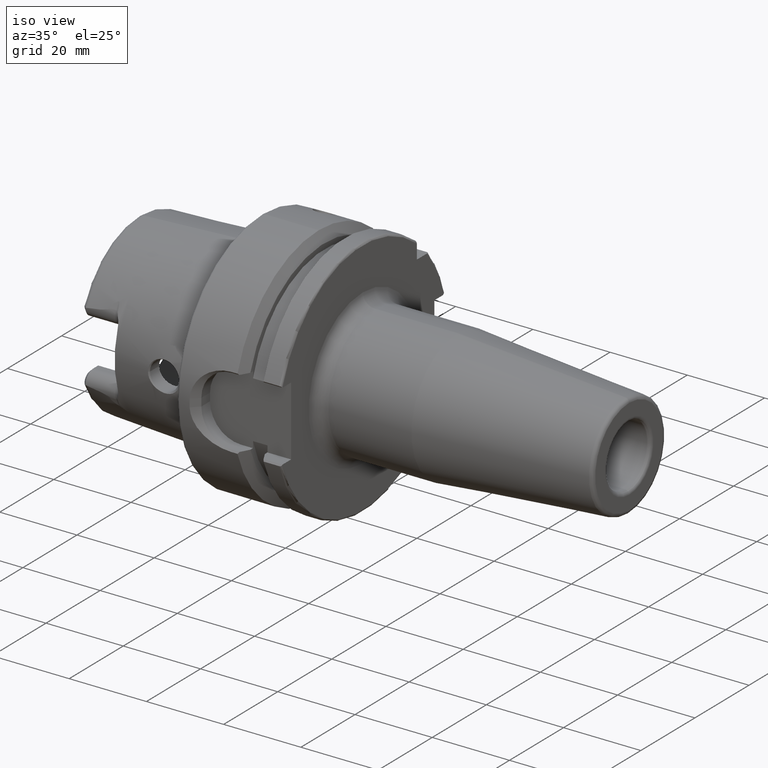
[diagram: clean part render]
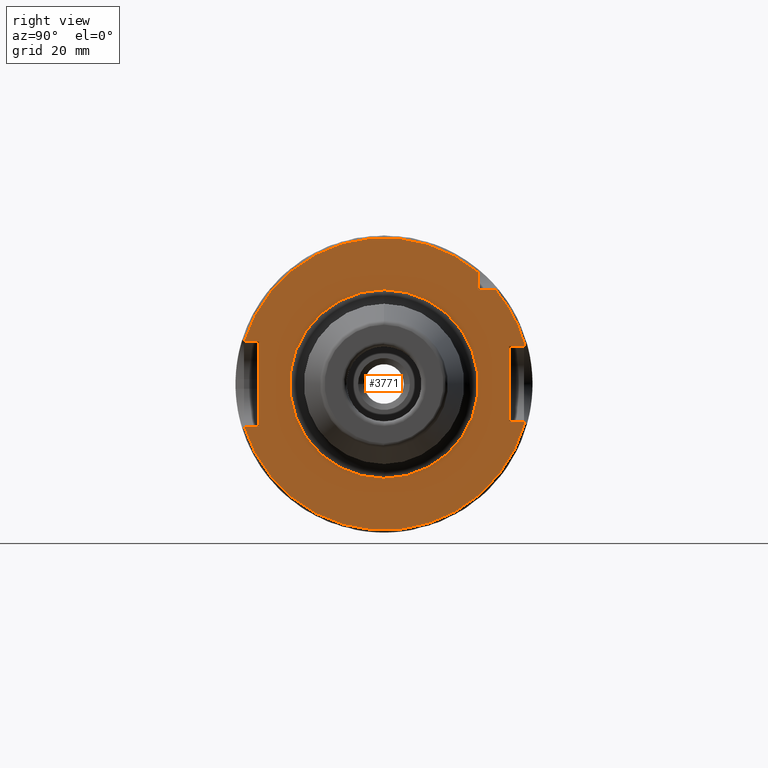
[diagram: tour spotlight — one face highlighted and labeled with its STEP entity id]
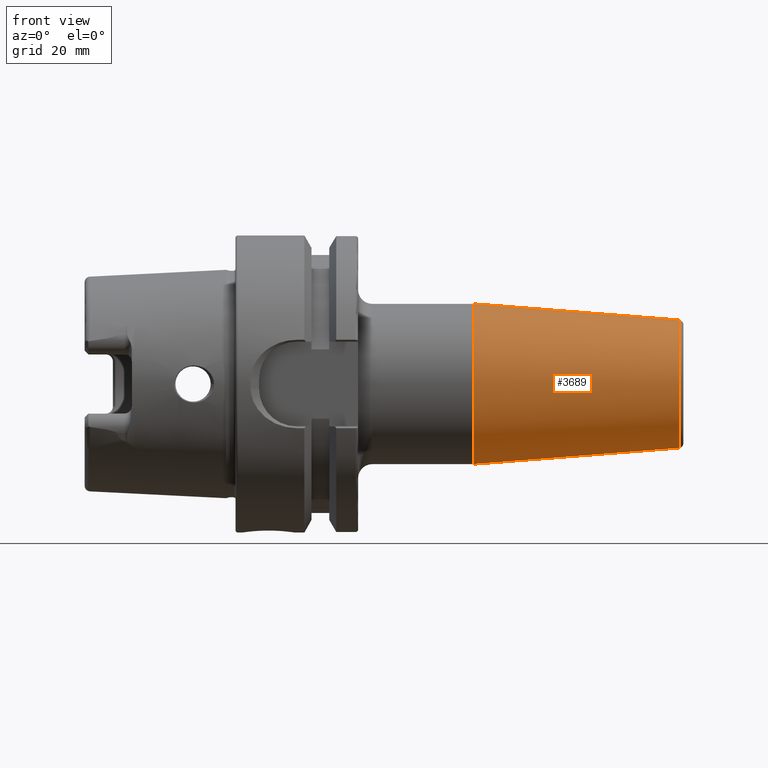
[diagram: tour spotlight — one face highlighted and labeled with its STEP entity id]
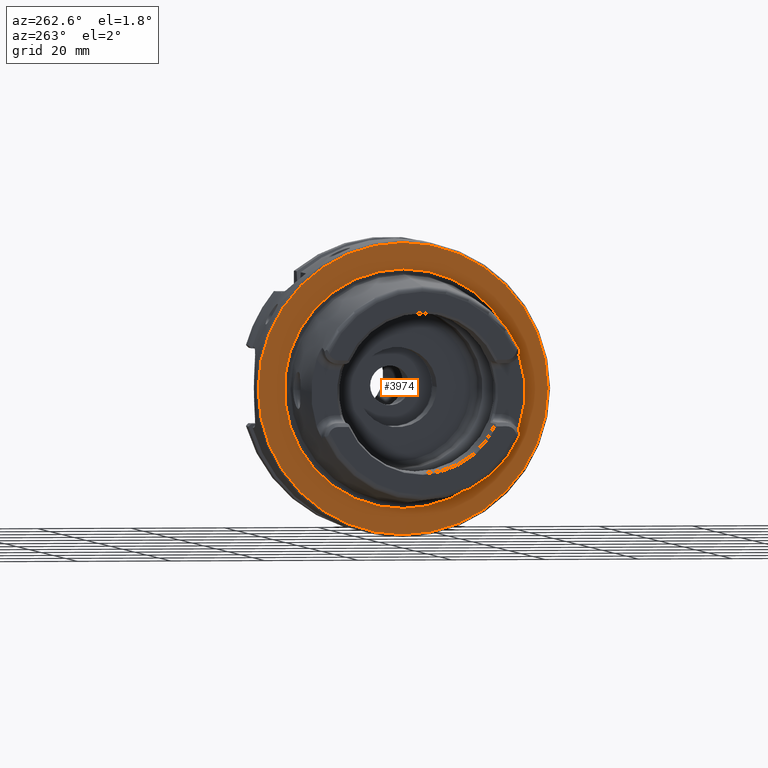
[diagram: tour spotlight — one face highlighted and labeled with its STEP entity id]
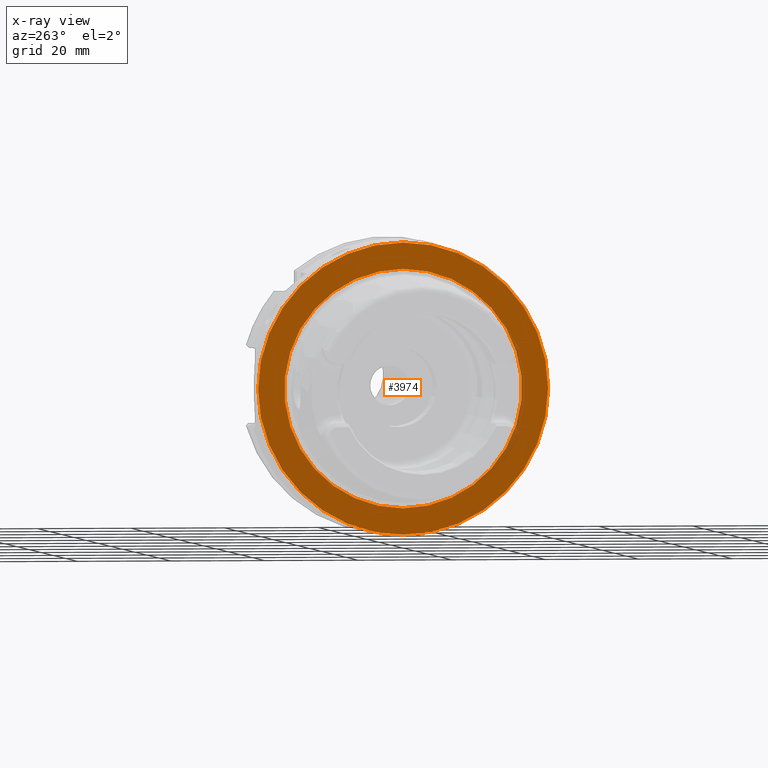
[diagram: x-ray of the same camera — body ghosted, this tour face saturated]
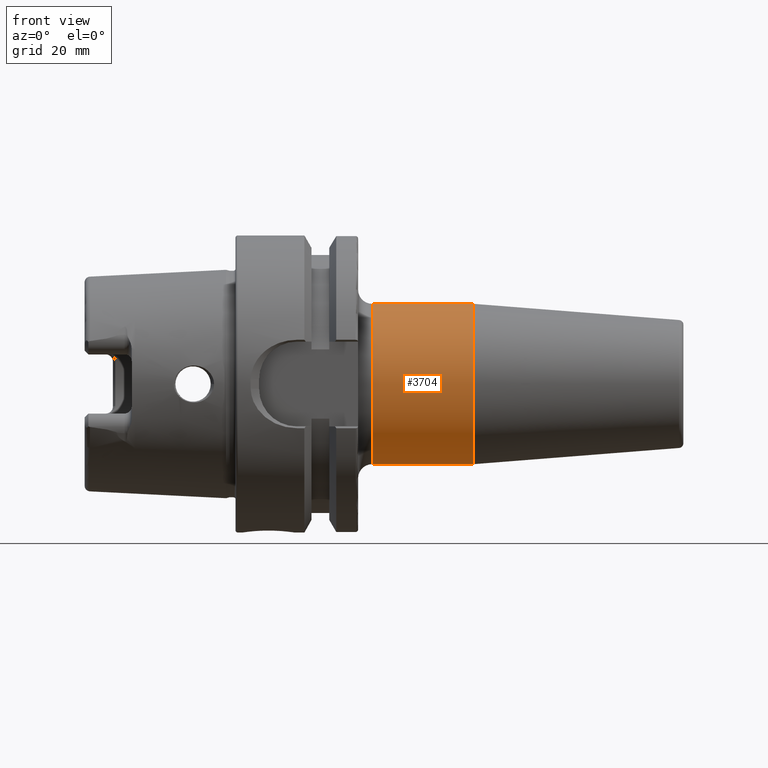
[diagram: tour spotlight — one face highlighted and labeled with its STEP entity id]
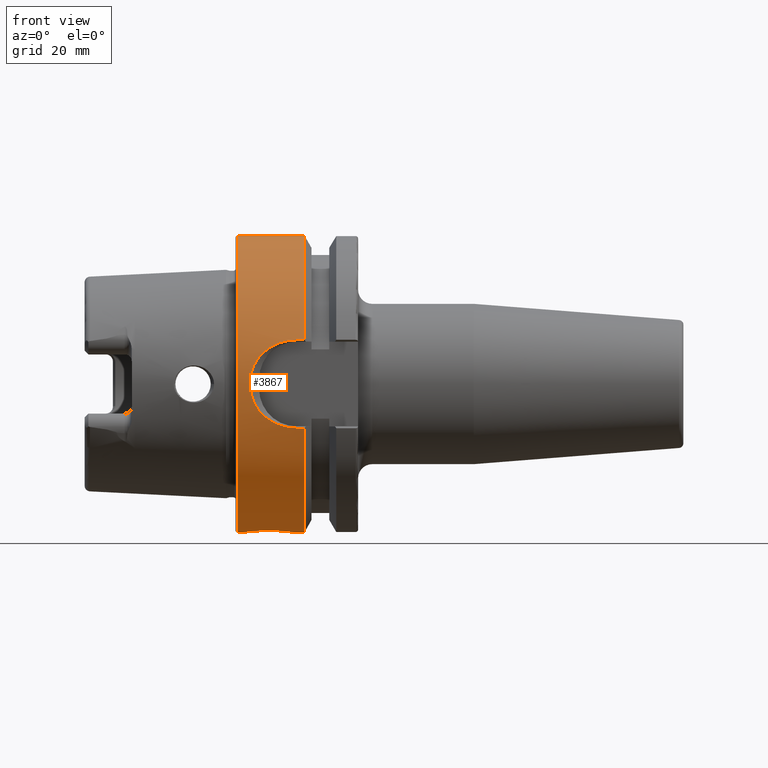
[diagram: tour spotlight — one face highlighted and labeled with its STEP entity id]
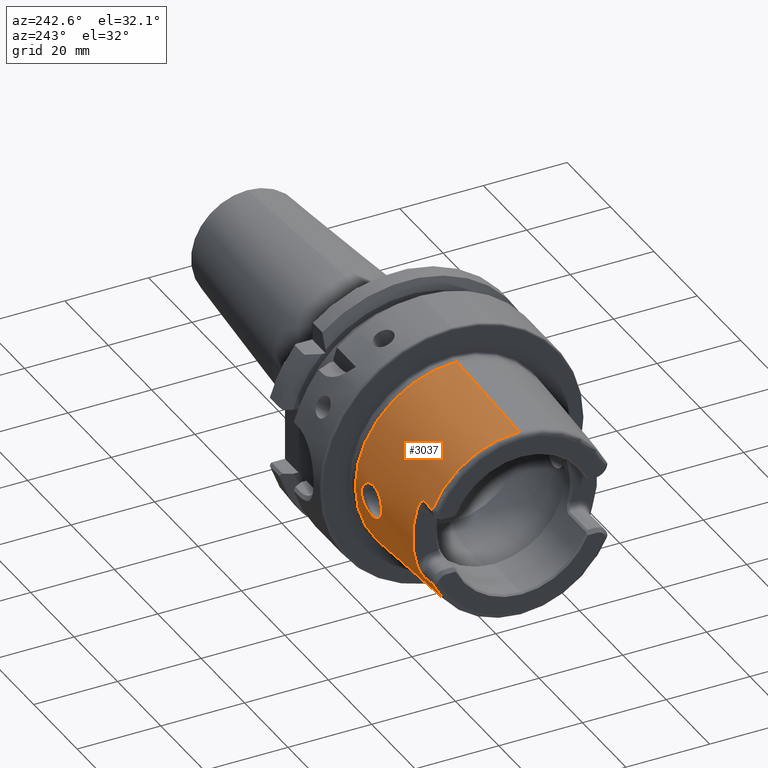
[diagram: tour spotlight — one face highlighted and labeled with its STEP entity id]
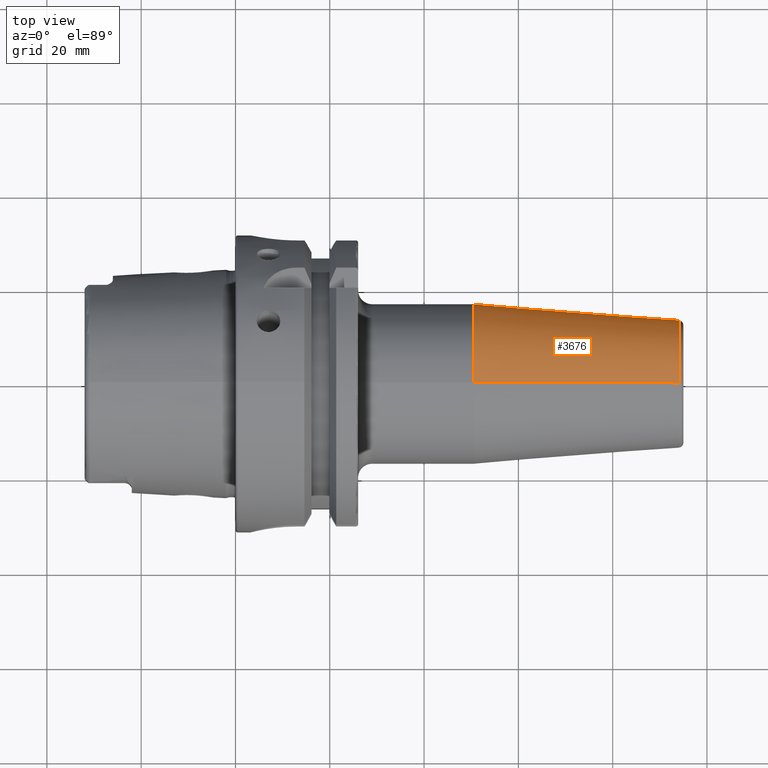
[diagram: tour spotlight — one face highlighted and labeled with its STEP entity id]
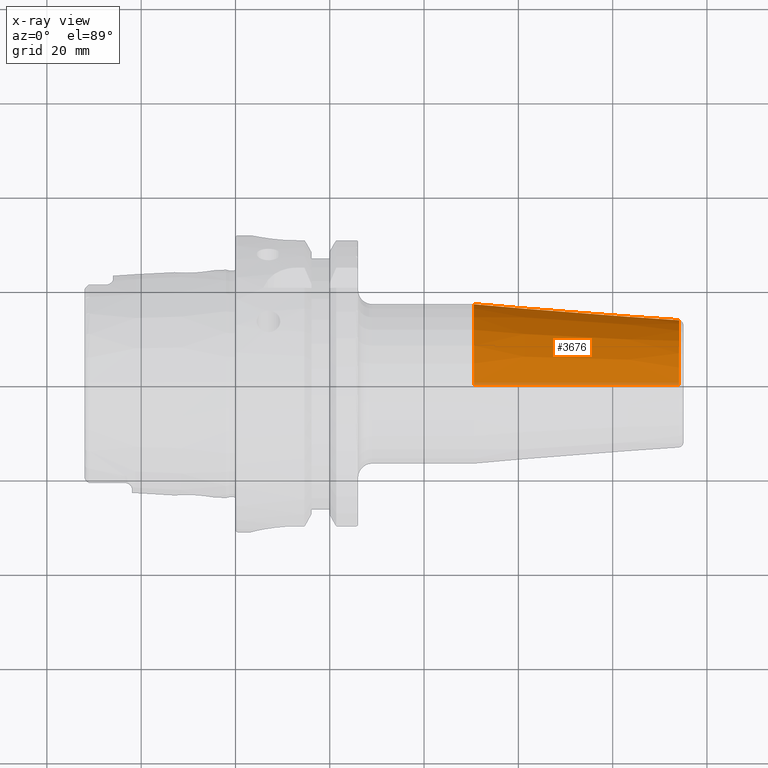
[diagram: x-ray of the same camera — body ghosted, this tour face saturated]
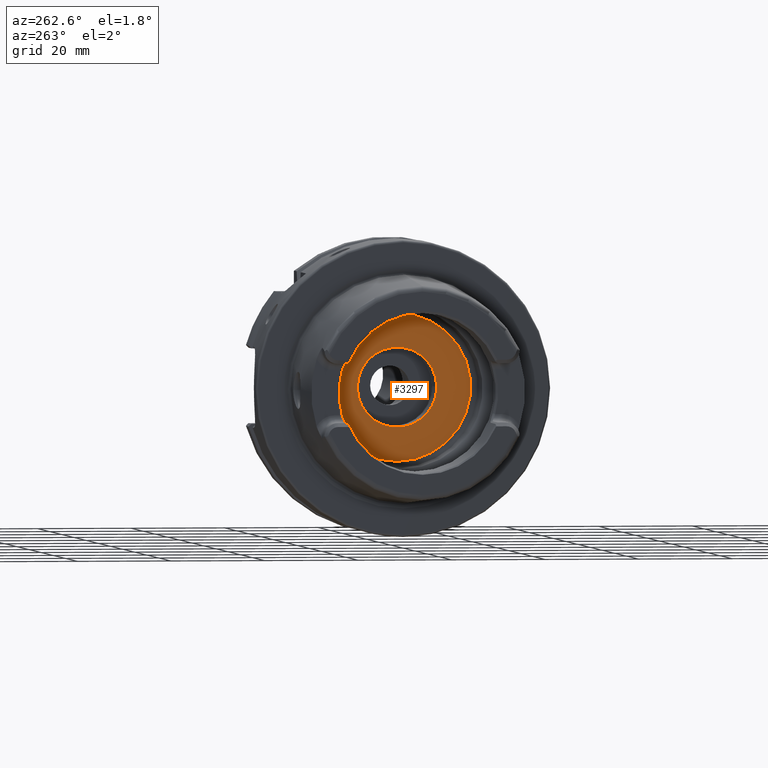
[diagram: tour spotlight — one face highlighted and labeled with its STEP entity id]
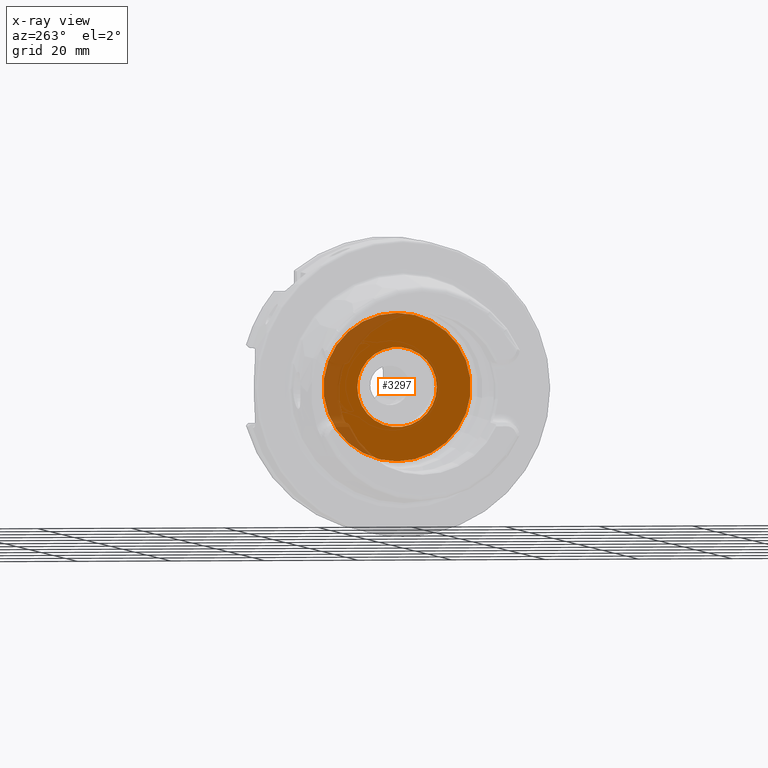
[diagram: x-ray of the same camera — body ghosted, this tour face saturated]
A machine part: a face-by-face anatomy tour. The part has 184 B-rep faces; the first image is the clean iso view, then the 8 largest visible faces are spotlighted one at a time (largest first), each with its STEP entity span.

Face 1 — right view, entity #3771. In plain terms, the highlighted planar face has unit normal (1, 0, 0).
Definition (entity closure, byte-faithful):
#622=DIRECTION('',(0.E0,1.E0,0.E0));
#623=VECTOR('',#622,3.164793948383E0);
#624=CARTESIAN_POINT('',(2.6E1,-2.966479394838E1,-9.E0));
#625=LINE('',#624,#623);
#626=DIRECTION('',(0.E0,0.E0,1.E0));
#627=VECTOR('',#626,1.8E1);
#628=CARTESIAN_POINT('',(2.6E1,-2.65E1,-9.E0));
#629=LINE('',#628,#627);
#630=DIRECTION('',(0.E0,1.E0,0.E0));
#631=VECTOR('',#630,3.164793948383E0);
#632=CARTESIAN_POINT('',(2.6E1,-2.966479394838E1,9.E0));
#633=LINE('',#632,#631);
#634=DIRECTION('',(0.E0,0.E0,-1.E0));
#635=VECTOR('',#634,3.685438564654E0);
#636=CARTESIAN_POINT('',(2.6E1,2.E1,2.368543856465E1));
#637=LINE('',#636,#635);
#638=DIRECTION('',(0.E0,-1.E0,0.E0));
#639=VECTOR('',#638,3.685438564654E0);
#640=CARTESIAN_POINT('',(2.6E1,2.368543856465E1,2.E1));
#641=LINE('',#640,#639);
#642=DIRECTION('',(0.E0,-7.071067811866E-1,-7.071067811865E-1));
#643=VECTOR('',#642,2.782025045905E-1);
#644=CARTESIAN_POINT('',(2.6E1,2.989671887754E1,8.196718877539E0));
#645=LINE('',#644,#643);
#646=DIRECTION('',(0.E0,-1.E0,0.E0));
#647=VECTOR('',#646,3.2E0);
#648=CARTESIAN_POINT('',(2.6E1,2.97E1,8.E0));
#649=LINE('',#648,#647);
#650=DIRECTION('',(0.E0,0.E0,1.E0));
#651=VECTOR('',#650,1.6E1);
#652=CARTESIAN_POINT('',(2.6E1,2.65E1,-8.E0));
#653=LINE('',#652,#651);
#654=DIRECTION('',(0.E0,-1.E0,0.E0));
#655=VECTOR('',#654,3.2E0);
#656=CARTESIAN_POINT('',(2.6E1,2.97E1,-8.E0));
#657=LINE('',#656,#655);
#658=DIRECTION('',(0.E0,-7.071067811865E-1,7.071067811866E-1));
#659=VECTOR('',#658,2.782025045903E-1);
#660=CARTESIAN_POINT('',(2.6E1,2.989671887754E1,-8.196718877539E0));
#661=LINE('',#660,#659);
#662=CARTESIAN_POINT('',(2.6E1,0.E0,0.E0));
#663=DIRECTION('',(1.E0,0.E0,0.E0));
#664=DIRECTION('',(0.E0,0.E0,-1.E0));
#665=AXIS2_PLACEMENT_3D('',#662,#663,#664);
#667=CARTESIAN_POINT('',(2.6E1,0.E0,0.E0));
#668=DIRECTION('',(1.E0,0.E0,0.E0));
#669=DIRECTION('',(0.E0,0.E0,1.E0));
#670=AXIS2_PLACEMENT_3D('',#667,#668,#669);
#677=CARTESIAN_POINT('',(2.6E1,0.E0,0.E0));
#678=DIRECTION('',(1.E0,0.E0,0.E0));
#679=DIRECTION('',(0.E0,-9.569288370446E-1,-2.903225806452E-1));
#680=AXIS2_PLACEMENT_3D('',#677,#678,#679);
#802=CARTESIAN_POINT('',(2.6E1,2.989671887754E1,-8.196718877539E0));
#1980=CARTESIAN_POINT('',(2.6E1,-2.966479394838E1,9.E0));
#2115=CARTESIAN_POINT('',(2.6E1,-2.966479394838E1,-9.E0));
#2308=CARTESIAN_POINT('',(2.6E1,2.989671887754E1,8.196718877539E0));
#2327=CARTESIAN_POINT('',(2.6E1,0.E0,0.E0));
#2328=DIRECTION('',(1.E0,0.E0,0.E0));
#2329=DIRECTION('',(0.E0,9.644102863722E-1,2.644102863722E-1));
#2330=AXIS2_PLACEMENT_3D('',#2327,#2328,#2329);
#2332=CARTESIAN_POINT('',(2.6E1,2.368543856465E1,2.E1));
#2357=CARTESIAN_POINT('',(2.6E1,2.E1,2.368543856465E1));
#2372=CARTESIAN_POINT('',(2.6E1,0.E0,0.E0));
#2373=DIRECTION('',(1.E0,0.E0,0.E0));
#2374=DIRECTION('',(0.E0,6.451612903226E-1,7.640464053114E-1));
#2375=AXIS2_PLACEMENT_3D('',#2372,#2373,#2374);
#2593=CARTESIAN_POINT('',(2.6E1,2.65E1,-8.E0));
#2594=CARTESIAN_POINT('',(2.6E1,2.65E1,8.E0));
#2595=VERTEX_POINT('',#2593);
#2596=VERTEX_POINT('',#2594);
#2625=CARTESIAN_POINT('',(2.6E1,-2.65E1,-9.E0));
#2626=CARTESIAN_POINT('',(2.6E1,-2.65E1,9.E0));
#2627=VERTEX_POINT('',#2625);
#2628=VERTEX_POINT('',#2626);
#2683=CARTESIAN_POINT('',(2.6E1,2.E1,2.E1));
#2684=VERTEX_POINT('',#2683);
#2896=CARTESIAN_POINT('',(2.6E1,2.97E1,-8.E0));
#2897=VERTEX_POINT('',#2896);
#2898=CARTESIAN_POINT('',(2.6E1,2.97E1,8.E0));
#2899=VERTEX_POINT('',#2898);
#2912=VERTEX_POINT('',#2115);
#2913=VERTEX_POINT('',#802);
#2916=VERTEX_POINT('',#2308);
#2917=VERTEX_POINT('',#2332);
#2920=VERTEX_POINT('',#2357);
#2921=VERTEX_POINT('',#1980);
#2984=CARTESIAN_POINT('',(2.6E1,0.E0,-2.E1));
#2985=CARTESIAN_POINT('',(2.6E1,0.E0,2.E1));
#2986=VERTEX_POINT('',#2984);
#2987=VERTEX_POINT('',#2985);
#3733=CARTESIAN_POINT('',(2.6E1,0.E0,0.E0));
#3734=DIRECTION('',(1.E0,0.E0,0.E0));
#3735=DIRECTION('',(0.E0,0.E0,1.E0));
#3736=AXIS2_PLACEMENT_3D('',#3733,#3734,#3735);
#3737=PLANE('',#3736);
#3739=ORIENTED_EDGE('',*,*,#3738,.F.);
#3741=ORIENTED_EDGE('',*,*,#3740,.T.);
#3743=ORIENTED_EDGE('',*,*,#3742,.T.);
#3745=ORIENTED_EDGE('',*,*,#3744,.F.);
#3747=ORIENTED_EDGE('',*,*,#3746,.F.);
#3749=ORIENTED_EDGE('',*,*,#3748,.T.);
#3751=ORIENTED_EDGE('',*,*,#3750,.F.);
#3753=ORIENTED_EDGE('',*,*,#3752,.F.);
#3755=ORIENTED_EDGE('',*,*,#3754,.T.);
#3757=ORIENTED_EDGE('',*,*,#3756,.T.);
#3759=ORIENTED_EDGE('',*,*,#3758,.F.);
#3761=ORIENTED_EDGE('',*,*,#3760,.F.);
#3763=ORIENTED_EDGE('',*,*,#3762,.F.);
#3764=EDGE_LOOP('',(#3739,#3741,#3743,#3745,#3747,#3749,#3751,#3753,#3755,#3757,
#3759,#3761,#3763));
#3765=FACE_OUTER_BOUND('',#3764,.F.);
#3766=ORIENTED_EDGE('',*,*,#3723,.T.);
#3768=ORIENTED_EDGE('',*,*,#3767,.T.);
#3769=EDGE_LOOP('',(#3766,#3768));
#3770=FACE_BOUND('',#3769,.F.);
#3771=ADVANCED_FACE('',(#3765,#3770),#3737,.T.);
#666=CIRCLE('',#665,2.E1);
#671=CIRCLE('',#670,2.E1);
#681=CIRCLE('',#680,3.1E1);
#2331=CIRCLE('',#2330,3.1E1);
#2376=CIRCLE('',#2375,3.1E1);
#3723=EDGE_CURVE('',#2986,#2987,#666,.T.);
#3738=EDGE_CURVE('',#2912,#2913,#681,.T.);
#3740=EDGE_CURVE('',#2912,#2627,#625,.T.);
#3742=EDGE_CURVE('',#2627,#2628,#629,.T.);
#3744=EDGE_CURVE('',#2921,#2628,#633,.T.);
#3746=EDGE_CURVE('',#2920,#2921,#2376,.T.);
#3748=EDGE_CURVE('',#2920,#2684,#637,.T.);
#3750=EDGE_CURVE('',#2917,#2684,#641,.T.);
#3752=EDGE_CURVE('',#2916,#2917,#2331,.T.);
#3754=EDGE_CURVE('',#2916,#2899,#645,.T.);
#3756=EDGE_CURVE('',#2899,#2596,#649,.T.);
#3758=EDGE_CURVE('',#2595,#2596,#653,.T.);
#3760=EDGE_CURVE('',#2897,#2595,#657,.T.);
#3762=EDGE_CURVE('',#2913,#2897,#661,.T.);
#3767=EDGE_CURVE('',#2987,#2986,#671,.T.);

Face 2 — front view, entity #3689. In plain terms, the highlighted conical surface has half-angle 4.5 deg.
Definition (entity closure, byte-faithful):
#586=DIRECTION('',(-9.969173337331E-1,0.E0,-7.845909572785E-2));
#587=VECTOR('',#586,4.368484145948E1);
#588=CARTESIAN_POINT('',(9.407845909573E1,0.E0,-1.357252684207E1));
#589=LINE('',#588,#587);
#590=DIRECTION('',(-9.969173337331E-1,0.E0,7.845909572785E-2));
#591=VECTOR('',#590,4.368484145948E1);
#592=CARTESIAN_POINT('',(9.407845909573E1,0.E0,1.357252684207E1));
#593=LINE('',#592,#591);
#594=CARTESIAN_POINT('',(9.407845909573E1,0.E0,0.E0));
#595=DIRECTION('',(-1.E0,0.E0,0.E0));
#596=DIRECTION('',(0.E0,0.E0,-1.E0));
#597=AXIS2_PLACEMENT_3D('',#594,#595,#596);
#607=CARTESIAN_POINT('',(5.052828342339E1,0.E0,0.E0));
#608=DIRECTION('',(-1.E0,0.E0,0.E0));
#609=DIRECTION('',(0.E0,0.E0,-1.E0));
#610=AXIS2_PLACEMENT_3D('',#607,#608,#609);
#2955=CARTESIAN_POINT('',(9.407845909573E1,0.E0,-1.357252684207E1));
#2957=VERTEX_POINT('',#2955);
#2958=CARTESIAN_POINT('',(5.052828342339E1,0.E0,-1.7E1));
#2959=VERTEX_POINT('',#2958);
#2977=CARTESIAN_POINT('',(9.407845909573E1,0.E0,1.357252684207E1));
#2979=VERTEX_POINT('',#2977);
#2980=CARTESIAN_POINT('',(5.052828342339E1,0.E0,1.7E1));
#2981=VERTEX_POINT('',#2980);
#3677=CARTESIAN_POINT('',(7.230337125956E1,0.E0,0.E0));
#3678=DIRECTION('',(-1.E0,0.E0,0.E0));
#3679=DIRECTION('',(0.E0,0.E0,-1.E0));
#3680=AXIS2_PLACEMENT_3D('',#3677,#3678,#3679);
#3681=CONICAL_SURFACE('',#3680,1.528626342104E1,4.5E0);
#3682=ORIENTED_EDGE('',*,*,#3667,.T.);
#3684=ORIENTED_EDGE('',*,*,#3683,.T.);
#3685=ORIENTED_EDGE('',*,*,#3670,.F.);
#3686=ORIENTED_EDGE('',*,*,#3641,.F.);
#3687=EDGE_LOOP('',(#3682,#3684,#3685,#3686));
#3688=FACE_OUTER_BOUND('',#3687,.F.);
#3689=ADVANCED_FACE('',(#3688),#3681,.T.);
#598=CIRCLE('',#597,1.357252684207E1);
#611=CIRCLE('',#610,1.7E1);
#3641=EDGE_CURVE('',#2957,#2979,#598,.T.);
#3667=EDGE_CURVE('',#2957,#2959,#589,.T.);
#3670=EDGE_CURVE('',#2979,#2981,#593,.T.);
#3683=EDGE_CURVE('',#2959,#2981,#611,.T.);

Face 3 — auxiliary view, entity #3974. An x-ray twin of the same camera follows (body ghosted, this face saturated) — the face is partly hidden behind the body. In plain terms, the highlighted planar face has unit normal (1, 0, 0).
Definition (entity closure, byte-faithful):
#975=CARTESIAN_POINT('',(0.E0,0.E0,0.E0));
#976=DIRECTION('',(1.E0,0.E0,0.E0));
#977=DIRECTION('',(0.E0,0.E0,-1.E0));
#978=AXIS2_PLACEMENT_3D('',#975,#976,#977);
#980=CARTESIAN_POINT('',(0.E0,0.E0,0.E0));
#981=DIRECTION('',(1.E0,0.E0,0.E0));
#982=DIRECTION('',(0.E0,0.E0,1.E0));
#983=AXIS2_PLACEMENT_3D('',#980,#981,#982);
#985=CARTESIAN_POINT('',(0.E0,0.E0,0.E0));
#986=DIRECTION('',(-1.E0,0.E0,0.E0));
#987=DIRECTION('',(0.E0,0.E0,1.E0));
#988=AXIS2_PLACEMENT_3D('',#985,#986,#987);
#990=CARTESIAN_POINT('',(0.E0,0.E0,0.E0));
#991=DIRECTION('',(-1.E0,0.E0,0.E0));
#992=DIRECTION('',(0.E0,0.E0,-1.E0));
#993=AXIS2_PLACEMENT_3D('',#990,#991,#992);
#2573=CARTESIAN_POINT('',(0.E0,0.E0,-2.54204E1));
#2574=CARTESIAN_POINT('',(0.E0,0.E0,2.54204E1));
#2575=VERTEX_POINT('',#2573);
#2576=VERTEX_POINT('',#2574);
#2902=CARTESIAN_POINT('',(0.E0,0.E0,3.1E1));
#2903=CARTESIAN_POINT('',(0.E0,1.138921523207E-14,-3.1E1));
#2904=VERTEX_POINT('',#2902);
#2905=VERTEX_POINT('',#2903);
#3958=CARTESIAN_POINT('',(0.E0,0.E0,0.E0));
#3959=DIRECTION('',(1.E0,0.E0,0.E0));
#3960=DIRECTION('',(0.E0,0.E0,1.E0));
#3961=AXIS2_PLACEMENT_3D('',#3958,#3959,#3960);
#3962=PLANE('',#3961);
#3963=ORIENTED_EDGE('',*,*,#3948,.F.);
#3965=ORIENTED_EDGE('',*,*,#3964,.F.);
#3966=EDGE_LOOP('',(#3963,#3965));
#3967=FACE_OUTER_BOUND('',#3966,.F.);
#3969=ORIENTED_EDGE('',*,*,#3968,.F.);
#3971=ORIENTED_EDGE('',*,*,#3970,.F.);
#3972=EDGE_LOOP('',(#3969,#3971));
#3973=FACE_BOUND('',#3972,.F.);
#3974=ADVANCED_FACE('',(#3967,#3973),#3962,.F.);
#979=CIRCLE('',#978,2.54204E1);
#984=CIRCLE('',#983,2.54204E1);
#989=CIRCLE('',#988,3.1E1);
#994=CIRCLE('',#993,3.1E1);
#3948=EDGE_CURVE('',#2904,#2905,#989,.T.);
#3964=EDGE_CURVE('',#2905,#2904,#994,.T.);
#3968=EDGE_CURVE('',#2575,#2576,#979,.T.);
#3970=EDGE_CURVE('',#2576,#2575,#984,.T.);

Face 4 — front view, entity #3704. In plain terms, the highlighted cylindrical surface (partial cylindrical patch) has radius 17 mm, axis along (1, 0, 0).
Definition (entity closure, byte-faithful):
#599=DIRECTION('',(-1.E0,0.E0,0.E0));
#600=VECTOR('',#599,2.152828342339E1);
#601=CARTESIAN_POINT('',(5.052828342339E1,0.E0,-1.7E1));
#602=LINE('',#601,#600);
#603=DIRECTION('',(-1.E0,0.E0,0.E0));
#604=VECTOR('',#603,2.152828342339E1);
#605=CARTESIAN_POINT('',(5.052828342339E1,0.E0,1.7E1));
#606=LINE('',#605,#604);
#607=CARTESIAN_POINT('',(5.052828342339E1,0.E0,0.E0));
#608=DIRECTION('',(-1.E0,0.E0,0.E0));
#609=DIRECTION('',(0.E0,0.E0,-1.E0));
#610=AXIS2_PLACEMENT_3D('',#607,#608,#609);
#2470=CARTESIAN_POINT('',(2.9E1,0.E0,0.E0));
#2471=DIRECTION('',(-1.E0,0.E0,0.E0));
#2472=DIRECTION('',(0.E0,0.E0,-1.E0));
#2473=AXIS2_PLACEMENT_3D('',#2470,#2471,#2472);
#2958=CARTESIAN_POINT('',(5.052828342339E1,0.E0,-1.7E1));
#2959=VERTEX_POINT('',#2958);
#2960=CARTESIAN_POINT('',(2.9E1,0.E0,-1.7E1));
#2961=VERTEX_POINT('',#2960);
#2980=CARTESIAN_POINT('',(5.052828342339E1,0.E0,1.7E1));
#2981=VERTEX_POINT('',#2980);
#2982=CARTESIAN_POINT('',(2.9E1,0.E0,1.7E1));
#2983=VERTEX_POINT('',#2982);
#3690=CARTESIAN_POINT('',(2.255E1,0.E0,0.E0));
#3691=DIRECTION('',(1.E0,0.E0,0.E0));
#3692=DIRECTION('',(0.E0,0.E0,1.E0));
#3693=AXIS2_PLACEMENT_3D('',#3690,#3691,#3692);
#3694=CYLINDRICAL_SURFACE('',#3693,1.7E1);
#3696=ORIENTED_EDGE('',*,*,#3695,.T.);
#3698=ORIENTED_EDGE('',*,*,#3697,.T.);
#3700=ORIENTED_EDGE('',*,*,#3699,.F.);
#3701=ORIENTED_EDGE('',*,*,#3683,.F.);
#3702=EDGE_LOOP('',(#3696,#3698,#3700,#3701));
#3703=FACE_OUTER_BOUND('',#3702,.F.);
#3704=ADVANCED_FACE('',(#3703),#3694,.T.);
#611=CIRCLE('',#610,1.7E1);
#2474=CIRCLE('',#2473,1.7E1);
#3683=EDGE_CURVE('',#2959,#2981,#611,.T.);
#3695=EDGE_CURVE('',#2959,#2961,#602,.T.);
#3697=EDGE_CURVE('',#2961,#2983,#2474,.T.);
#3699=EDGE_CURVE('',#2981,#2983,#606,.T.);

Face 5 — front view, entity #3867. In plain terms, the highlighted cylindrical surface (partial cylindrical patch) has radius 31.5 mm, axis along (1, 0, 0).
Definition (entity closure, byte-faithful):
#706=CARTESIAN_POINT('',(5.E-1,0.E0,0.E0));
#707=DIRECTION('',(-1.E0,0.E0,0.E0));
#708=DIRECTION('',(0.E0,0.E0,-1.E0));
#709=AXIS2_PLACEMENT_3D('',#706,#707,#708);
#711=DIRECTION('',(-1.E0,-1.152697855394E-12,0.E0));
#712=VECTOR('',#711,1.412250090457E1);
#713=CARTESIAN_POINT('',(1.462250090457E1,0.E0,3.15E1));
#714=LINE('',#713,#712);
#715=CARTESIAN_POINT('',(1.462250090457E1,0.E0,0.E0));
#716=DIRECTION('',(1.E0,0.E0,0.E0));
#717=DIRECTION('',(0.E0,0.E0,1.E0));
#718=AXIS2_PLACEMENT_3D('',#715,#716,#717);
#720=DIRECTION('',(1.E0,0.E0,0.E0));
#721=VECTOR('',#720,1.622500904567E0);
#722=CARTESIAN_POINT('',(1.3E1,-3.007314630073E1,9.373146300730E0));
#723=LINE('',#722,#721);
#724=CARTESIAN_POINT('',(3.215877017138E0,-3.148412298286E1,1.E0));
#725=CARTESIAN_POINT('',(3.229667999164E0,-3.147033200084E1,1.434196974159E0));
#726=CARTESIAN_POINT('',(3.331305148110E0,-3.142562614716E1,2.280557906877E0));
#727=CARTESIAN_POINT('',(3.689639209254E0,-3.131261894329E1,3.497824814117E0));
#728=CARTESIAN_POINT('',(4.224387561762E0,-3.116591969202E1,4.617731549332E0));
#729=CARTESIAN_POINT('',(4.908842568303E0,-3.099748287679E1,5.632070943113E0));
#730=CARTESIAN_POINT('',(5.712482050064E0,-3.082045350516E1,6.526140660742E0));
#731=CARTESIAN_POINT('',(6.610248790574E0,-3.064607991101E1,7.296749719208E0));
#732=CARTESIAN_POINT('',(7.571522800308E0,-3.048524436851E1,7.938452155490E0));
#733=CARTESIAN_POINT('',(8.586678709411E0,-3.034375148093E1,8.460694722024E0));
#734=CARTESIAN_POINT('',(9.645764018389E0,-3.022707288446E1,8.866638984176E0));
#735=CARTESIAN_POINT('',(1.074128466146E1,-3.013966717822E1,9.158034230836E0));
#736=CARTESIAN_POINT('',(1.186302386205E1,-3.008546433696E1,9.333758812896E0));
#737=CARTESIAN_POINT('',(1.261911814478E1,-3.007314630073E1,9.373146300730E0));
#738=CARTESIAN_POINT('',(1.3E1,-3.007314630073E1,9.373146300730E0));
#740=CARTESIAN_POINT('',(3.215877017138E0,-3.148412298286E1,1.E0));
#741=CARTESIAN_POINT('',(3.194702323244E0,-3.150529767676E1,3.333333333333E-1));
#742=CARTESIAN_POINT('',(3.194702323244E0,-3.150529767676E1,
-3.333333333333E-1));
#743=CARTESIAN_POINT('',(3.215877017138E0,-3.148412298286E1,-1.E0));
#745=CARTESIAN_POINT('',(1.3E1,-3.007314630073E1,-9.373146300730E0));
#746=CARTESIAN_POINT('',(1.261853332120E1,-3.007314630073E1,-9.373146300730E0));
#747=CARTESIAN_POINT('',(1.186054965003E1,-3.008548964654E1,-9.333679878844E0));
#748=CARTESIAN_POINT('',(1.073214946153E1,-3.014018055062E1,-9.156365746563E0));
#749=CARTESIAN_POINT('',(9.631145388051E0,-3.022842683235E1,-8.862067281056E0));
#750=CARTESIAN_POINT('',(8.571278418516E0,-3.034570143073E1,-8.453719776647E0));
#751=CARTESIAN_POINT('',(7.561968874510E0,-3.048678333923E1,-7.932465852427E0));
#752=CARTESIAN_POINT('',(6.609353099417E0,-3.064632014939E1,-7.295523702098E0));
#753=CARTESIAN_POINT('',(5.719379577085E0,-3.081907849533E1,-6.532291860359E0));
#754=CARTESIAN_POINT('',(4.918592559215E0,-3.099521802093E1,-5.644324145033E0));
#755=CARTESIAN_POINT('',(4.231158808814E0,-3.116413549913E1,-4.629983120332E0));
#756=CARTESIAN_POINT('',(3.691949597490E0,-3.131190693228E1,-3.504990575318E0));
#757=CARTESIAN_POINT('',(3.331145804748E0,-3.142565099898E1,-2.281032014602E0));
#758=CARTESIAN_POINT('',(3.229661047521E0,-3.147033895248E1,-1.433978107804E0));
#759=CARTESIAN_POINT('',(3.215877017138E0,-3.148412298286E1,-1.E0));
#761=DIRECTION('',(1.E0,0.E0,0.E0));
#762=VECTOR('',#761,1.622500904567E0);
#763=CARTESIAN_POINT('',(1.3E1,-3.007314630073E1,-9.373146300730E0));
#764=LINE('',#763,#762);
#765=CARTESIAN_POINT('',(1.462250090457E1,0.E0,0.E0));
#766=DIRECTION('',(1.E0,0.E0,0.E0));
#767=DIRECTION('',(0.E0,-9.547030571660E-1,-2.975602000232E-1));
#768=AXIS2_PLACEMENT_3D('',#765,#766,#767);
#770=DIRECTION('',(-1.E0,0.E0,0.E0));
#771=VECTOR('',#770,2.122500904567E0);
#772=CARTESIAN_POINT('',(1.462250090457E1,0.E0,-3.15E1));
#773=LINE('',#772,#771);
#774=CARTESIAN_POINT('',(1.5E0,0.E0,-3.15E1));
#775=CARTESIAN_POINT('',(1.5E0,-3.588951255127E-1,-3.15E1));
#776=CARTESIAN_POINT('',(1.581138327990E0,-1.048548521747E0,-3.148782376809E1));
#777=CARTESIAN_POINT('',(1.910588073966E0,-2.006564336888E0,-3.144040908891E1));
#778=CARTESIAN_POINT('',(2.415944971875E0,-2.861556117510E0,-3.137324069068E1));
#779=CARTESIAN_POINT('',(3.093296979582E0,-3.621570072850E0,-3.129379480836E1));
#780=CARTESIAN_POINT('',(3.932860337858E0,-4.259632130927E0,-3.121237817627E1));
#781=CARTESIAN_POINT('',(4.908163968859E0,-4.738763837594E0,-3.114229734464E1));
#782=CARTESIAN_POINT('',(5.940629906439E0,-5.023428099724E0,-3.109702626598E1));
#783=CARTESIAN_POINT('',(7.003177692584E0,-5.118459986461E0,-3.108133735981E1));
#784=CARTESIAN_POINT('',(8.065102610065E0,-5.022310651440E0,-3.109720856453E1));
#785=CARTESIAN_POINT('',(9.095890701222E0,-4.737167472201E0,-3.114254165967E1));
#786=CARTESIAN_POINT('',(1.007119715688E1,-4.257247395534E0,-3.121271241342E1));
#787=CARTESIAN_POINT('',(1.091189752168E1,-3.616987749219E0,-3.129434443001E1));
#788=CARTESIAN_POINT('',(1.158923361556E1,-2.854578399489E0,-3.137389265772E1));
#789=CARTESIAN_POINT('',(1.209279314293E1,-1.998956427454E0,-3.144088492167E1));
#790=CARTESIAN_POINT('',(1.241973333056E1,-1.043420158419E0,-3.148795551285E1));
#791=CARTESIAN_POINT('',(1.25E1,-3.569041729368E-1,-3.15E1));
#792=CARTESIAN_POINT('',(1.25E1,0.E0,-3.15E1));
#794=DIRECTION('',(-1.E0,-3.500326402276E-12,0.E0));
#795=VECTOR('',#794,1.E0);
#796=CARTESIAN_POINT('',(1.5E0,0.E0,-3.15E1));
#797=LINE('',#796,#795);
#816=CARTESIAN_POINT('',(1.25E1,0.E0,-3.15E1));
#834=CARTESIAN_POINT('',(1.5E0,0.E0,-3.15E1));
#2681=CARTESIAN_POINT('',(1.462250090457E1,0.E0,3.15E1));
#2682=VERTEX_POINT('',#2681);
#2824=VERTEX_POINT('',#816);
#2825=VERTEX_POINT('',#834);
#2834=CARTESIAN_POINT('',(1.462250090457E1,0.E0,-3.15E1));
#2835=VERTEX_POINT('',#2834);
#2858=CARTESIAN_POINT('',(1.3E1,-3.007314630073E1,-9.373146300730E0));
#2859=CARTESIAN_POINT('',(1.462250090457E1,-3.007314630073E1,
-9.373146300730E0));
#2860=VERTEX_POINT('',#2858);
#2861=VERTEX_POINT('',#2859);
#2862=VERTEX_POINT('',#759);
#2863=VERTEX_POINT('',#740);
#2864=VERTEX_POINT('',#738);
#2865=CARTESIAN_POINT('',(1.462250090457E1,-3.007314630073E1,9.373146300730E0));
#2866=VERTEX_POINT('',#2865);
#2906=CARTESIAN_POINT('',(5.E-1,0.E0,3.15E1));
#2907=CARTESIAN_POINT('',(5.E-1,0.E0,-3.15E1));
#2908=VERTEX_POINT('',#2906);
#2909=VERTEX_POINT('',#2907);
#3836=CARTESIAN_POINT('',(0.E0,0.E0,0.E0));
#3837=DIRECTION('',(1.E0,0.E0,0.E0));
#3838=DIRECTION('',(0.E0,0.E0,1.E0));
#3839=AXIS2_PLACEMENT_3D('',#3836,#3837,#3838);
#3840=CYLINDRICAL_SURFACE('',#3839,3.15E1);
#3842=ORIENTED_EDGE('',*,*,#3841,.T.);
#3844=ORIENTED_EDGE('',*,*,#3843,.F.);
#3846=ORIENTED_EDGE('',*,*,#3845,.T.);
#3848=ORIENTED_EDGE('',*,*,#3847,.F.);
#3850=ORIENTED_EDGE('',*,*,#3849,.F.);
#3852=ORIENTED_EDGE('',*,*,#3851,.T.);
#3854=ORIENTED_EDGE('',*,*,#3853,.F.);
#3856=ORIENTED_EDGE('',*,*,#3855,.T.);
#3858=ORIENTED_EDGE('',*,*,#3857,.T.);
#3860=ORIENTED_EDGE('',*,*,#3859,.T.);
#3862=ORIENTED_EDGE('',*,*,#3861,.F.);
#3864=ORIENTED_EDGE('',*,*,#3863,.T.);
#3865=EDGE_LOOP('',(#3842,#3844,#3846,#3848,#3850,#3852,#3854,#3856,#3858,#3860,
#3862,#3864));
#3866=FACE_OUTER_BOUND('',#3865,.F.);
#3867=ADVANCED_FACE('',(#3866),#3840,.T.);
#710=CIRCLE('',#709,3.15E1);
#719=CIRCLE('',#718,3.15E1);
#739=B_SPLINE_CURVE_WITH_KNOTS('',3,(#724,#725,#726,#727,#728,#729,#730,#731,
#732,#733,#734,#735,#736,#737,#738),.UNSPECIFIED.,.F.,.F.,(4,1,1,1,1,1,1,1,1,1,
1,1,4),(0.E0,8.333333333333E-2,1.666666666667E-1,2.5E-1,3.333333333333E-1,
4.166666666667E-1,5.E-1,5.833333333333E-1,6.666666666667E-1,7.5E-1,
8.333333333333E-1,9.166666666667E-1,1.E0),.UNSPECIFIED.);
#744=B_SPLINE_CURVE_WITH_KNOTS('',3,(#740,#741,#742,#743),.UNSPECIFIED.,.F.,.F.,
(4,4),(0.E0,1.E0),.UNSPECIFIED.);
#760=B_SPLINE_CURVE_WITH_KNOTS('',3,(#745,#746,#747,#748,#749,#750,#751,#752,
#753,#754,#755,#756,#757,#758,#759),.UNSPECIFIED.,.F.,.F.,(4,1,1,1,1,1,1,1,1,1,
1,1,4),(0.E0,8.333333333333E-2,1.666666666667E-1,2.5E-1,3.333333333333E-1,
4.166666666667E-1,5.E-1,5.833333333333E-1,6.666666666667E-1,7.5E-1,
8.333333333333E-1,9.166666666667E-1,1.E0),.UNSPECIFIED.);
#769=CIRCLE('',#768,3.15E1);
#793=B_SPLINE_CURVE_WITH_KNOTS('',3,(#774,#775,#776,#777,#778,#779,#780,#781,
#782,#783,#784,#785,#786,#787,#788,#789,#790,#791,#792),.UNSPECIFIED.,.F.,.F.,
(4,1,1,1,1,1,1,1,1,1,1,1,1,1,1,1,4),(0.E0,6.25E-2,1.25E-1,1.875E-1,2.5E-1,
3.125E-1,3.75E-1,4.375E-1,5.E-1,5.625E-1,6.25E-1,6.875E-1,7.5E-1,8.125E-1,
8.75E-1,9.375E-1,1.E0),.UNSPECIFIED.);
#3841=EDGE_CURVE('',#2909,#2908,#710,.T.);
#3843=EDGE_CURVE('',#2682,#2908,#714,.T.);
#3845=EDGE_CURVE('',#2682,#2866,#719,.T.);
#3847=EDGE_CURVE('',#2864,#2866,#723,.T.);
#3849=EDGE_CURVE('',#2863,#2864,#739,.T.);
#3851=EDGE_CURVE('',#2863,#2862,#744,.T.);
#3853=EDGE_CURVE('',#2860,#2862,#760,.T.);
#3855=EDGE_CURVE('',#2860,#2861,#764,.T.);
#3857=EDGE_CURVE('',#2861,#2835,#769,.T.);
#3859=EDGE_CURVE('',#2835,#2824,#773,.T.);
#3861=EDGE_CURVE('',#2825,#2824,#793,.T.);
#3863=EDGE_CURVE('',#2825,#2909,#797,.T.);

Face 6 — auxiliary view, entity #3037. In plain terms, the highlighted conical surface has half-angle 2.868 deg.
Definition (entity closure, byte-faithful):
#2=CARTESIAN_POINT('',(-3.086004333271E1,0.E0,0.E0));
#3=DIRECTION('',(-1.E0,0.E0,0.E0));
#4=DIRECTION('',(0.E0,9.163649919573E-1,-4.003438540993E-1));
#5=AXIS2_PLACEMENT_3D('',#2,#3,#4);
#7=CARTESIAN_POINT('',(-2.000078966146E0,0.E0,0.E0));
#8=DIRECTION('',(-1.E0,0.E0,0.E0));
#9=DIRECTION('',(0.E0,0.E0,1.E0));
#10=AXIS2_PLACEMENT_3D('',#7,#8,#9);
#12=CARTESIAN_POINT('',(-3.086004333271E1,0.E0,0.E0));
#13=DIRECTION('',(-1.E0,0.E0,0.E0));
#14=DIRECTION('',(0.E0,0.E0,1.E0));
#15=AXIS2_PLACEMENT_3D('',#12,#13,#14);
#17=CARTESIAN_POINT('',(-3.086004333271E1,2.086981840766E1,9.117659021249E0));
#18=CARTESIAN_POINT('',(-3.053477016229E1,2.087026407252E1,9.157343468693E0));
#19=CARTESIAN_POINT('',(-2.990731725920E1,2.086951854295E1,9.237138009720E0));
#20=CARTESIAN_POINT('',(-2.903749175968E1,2.086333964170E1,9.358087934639E0));
#21=CARTESIAN_POINT('',(-2.823306039663E1,2.085177035668E1,9.481640423811E0));
#22=CARTESIAN_POINT('',(-2.773735868303E1,2.083999307163E1,9.567019157167E0));
#23=CARTESIAN_POINT('',(-2.75E1,2.083289994314E1,9.610781850025E0));
#25=CARTESIAN_POINT('',(-3.086004333271E1,2.086981840766E1,-9.117659021249E0));
#26=CARTESIAN_POINT('',(-3.053477016229E1,2.087026407252E1,-9.157343468693E0));
#27=CARTESIAN_POINT('',(-2.990731725920E1,2.086951854295E1,-9.237138009720E0));
#28=CARTESIAN_POINT('',(-2.903749175968E1,2.086333964170E1,-9.358087934639E0));
#29=CARTESIAN_POINT('',(-2.823306039663E1,2.085177035668E1,-9.481640423811E0));
#30=CARTESIAN_POINT('',(-2.773735868303E1,2.083999307163E1,-9.567019157167E0));
#31=CARTESIAN_POINT('',(-2.75E1,2.083289994314E1,-9.610781850025E0));
#33=CARTESIAN_POINT('',(-1.304439190524E1,2.366711362744E1,0.E0));
#34=CARTESIAN_POINT('',(-1.304439190524E1,2.366711362744E1,-2.692296203512E-1));
#35=CARTESIAN_POINT('',(-1.298596588633E1,2.366095548437E1,-7.915478808268E-1));
#36=CARTESIAN_POINT('',(-1.273593529021E1,2.363615494345E1,-1.538491121410E0));
#37=CARTESIAN_POINT('',(-1.234085581199E1,2.360161826823E1,-2.213541098239E0));
#38=CARTESIAN_POINT('',(-1.181419542757E1,2.356442533815E1,-2.805250832800E0));
#39=CARTESIAN_POINT('',(-1.117137997799E1,2.353291472613E1,-3.293080560877E0));
#40=CARTESIAN_POINT('',(-1.044411763446E1,2.351584278645E1,-3.653416998785E0));
#41=CARTESIAN_POINT('',(-9.665961713705E0,2.351947741575E1,-3.874611692795E0));
#42=CARTESIAN_POINT('',(-8.868249773196E0,2.354653765362E1,-3.954597009881E0));
#43=CARTESIAN_POINT('',(-8.066538054402E0,2.359739017255E1,-3.894486132971E0));
#44=CARTESIAN_POINT('',(-7.282895667530E0,2.366966238930E1,-3.694792672991E0));
#45=CARTESIAN_POINT('',(-6.526798753436E0,2.376050761714E1,-3.345491144455E0));
#46=CARTESIAN_POINT('',(-5.863814319433E0,2.385701628222E1,-2.868853306938E0));
#47=CARTESIAN_POINT('',(-5.312865344565E0,2.394874241525E1,-2.282242940895E0));
#48=CARTESIAN_POINT('',(-4.894562356430E0,2.402528280422E1,-1.608353345469E0));
#49=CARTESIAN_POINT('',(-4.618382192889E0,2.407904412959E1,-8.401112834544E-1));
#50=CARTESIAN_POINT('',(-4.550876813471E0,2.409262908457E1,-2.877835390342E-1));
#51=CARTESIAN_POINT('',(-4.550876813471E0,2.409262908457E1,0.E0));
#53=CARTESIAN_POINT('',(-4.550876813471E0,2.409262908457E1,0.E0));
#54=CARTESIAN_POINT('',(-4.550876813471E0,2.409262908457E1,2.859611557422E-1));
#55=CARTESIAN_POINT('',(-4.617596309412E0,2.407920413971E1,8.352613928778E-1));
#56=CARTESIAN_POINT('',(-4.890694973026E0,2.402602347294E1,1.599880277375E0));
#57=CARTESIAN_POINT('',(-5.306466792903E0,2.394987071124E1,2.273906799261E0));
#58=CARTESIAN_POINT('',(-5.856510230644E0,2.385815053501E1,2.862665496108E0));
#59=CARTESIAN_POINT('',(-6.521241332787E0,2.376122989035E1,3.342466827978E0));
#60=CARTESIAN_POINT('',(-7.278646414857E0,2.367010677752E1,3.693348295885E0));
#61=CARTESIAN_POINT('',(-8.062694821519E0,2.359768581097E1,3.893886174943E0));
#62=CARTESIAN_POINT('',(-8.864889034770E0,2.354669857096E1,3.954654604967E0));
#63=CARTESIAN_POINT('',(-9.662752662742E0,2.351953711749E1,3.875232791745E0));
#64=CARTESIAN_POINT('',(-1.044126794827E1,2.351581579089E1,3.654504198045E0));
#65=CARTESIAN_POINT('',(-1.116829063931E1,2.353280579750E1,3.294940241881E0));
#66=CARTESIAN_POINT('',(-1.181105545196E1,2.356423840462E1,2.808070161338E0));
#67=CARTESIAN_POINT('',(-1.233792159236E1,2.360138355943E1,2.217544614980E0));
#68=CARTESIAN_POINT('',(-1.273424784845E1,2.363599247778E1,1.542402709130E0));
#69=CARTESIAN_POINT('',(-1.298554429292E1,2.366091077517E1,7.941137450600E-1));
#70=CARTESIAN_POINT('',(-1.304439190524E1,2.366711362744E1,2.702086010916E-1));
#71=CARTESIAN_POINT('',(-1.304439190524E1,2.366711362744E1,0.E0));
#144=CARTESIAN_POINT('',(-2.75E1,2.083289994314E1,-9.610781850025E0));
#145=CARTESIAN_POINT('',(-2.743975062531E1,2.083109947580E1,-9.621890248698E0));
#146=CARTESIAN_POINT('',(-2.731974848713E1,2.083872619074E1,-9.619737940193E0));
#147=CARTESIAN_POINT('',(-2.713788283439E1,2.088499706769E1,-9.541042090458E0));
#148=CARTESIAN_POINT('',(-2.696734572208E1,2.095414112914E1,-9.409321527965E0));
#149=CARTESIAN_POINT('',(-2.680749153758E1,2.103583876480E1,-9.245355378728E0));
#150=CARTESIAN_POINT('',(-2.665257735252E1,2.112843537783E1,-9.051716021862E0));
#151=CARTESIAN_POINT('',(-2.650302698832E1,2.123047210424E1,-8.829512386182E0));
#152=CARTESIAN_POINT('',(-2.636248241751E1,2.133984318010E1,-8.581008391494E0));
#153=CARTESIAN_POINT('',(-2.623108108915E1,2.145913591165E1,-8.296954135832E0));
#154=CARTESIAN_POINT('',(-2.611489180659E1,2.158976731555E1,-7.968405102356E0));
#155=CARTESIAN_POINT('',(-2.602652288189E1,2.173158022596E1,-7.587530024420E0));
#156=CARTESIAN_POINT('',(-2.6E1,2.183164499938E1,-7.296342131266E0));
#157=CARTESIAN_POINT('',(-2.6E1,2.188224159781E1,-7.141305064401E0));
#173=CARTESIAN_POINT('',(-2.6E1,0.E0,0.E0));
#174=DIRECTION('',(1.E0,0.E0,0.E0));
#175=DIRECTION('',(0.E0,9.506556522061E-1,-3.102480151887E-1));
#176=AXIS2_PLACEMENT_3D('',#173,#174,#175);
#1141=DIRECTION('',(-9.987474310439E-1,-1.043943059125E-10,-5.003567710383E-2));
#1142=VECTOR('',#1141,2.889623723507E1);
#1143=CARTESIAN_POINT('',(-2.000000627352E0,3.013169918385E-9,
2.422041252602E1));
#1144=LINE('',#1143,#1142);
#1150=DIRECTION('',(-9.987474310439E-1,1.043954859780E-10,5.003567710383E-2));
#1151=VECTOR('',#1150,2.889623723507E1);
#1152=CARTESIAN_POINT('',(-2.000000627352E0,-3.013171862045E-9,
-2.422041252602E1));
#1153=LINE('',#1152,#1151);
#1309=CARTESIAN_POINT('',(-2.6E1,2.188224159781E1,7.141305064400E0));
#1310=CARTESIAN_POINT('',(-2.6E1,2.183974716074E1,7.271515653360E0));
#1311=CARTESIAN_POINT('',(-2.601871282871E1,2.175468164903E1,7.521324142367E0));
#1312=CARTESIAN_POINT('',(-2.608831272694E1,2.162788937119E1,7.867819964950E0));
#1313=CARTESIAN_POINT('',(-2.618560132166E1,2.150728532315E1,8.177555427085E0));
#1314=CARTESIAN_POINT('',(-2.630091098865E1,2.139363544444E1,8.454351951900E0));
#1315=CARTESIAN_POINT('',(-2.642777532615E1,2.128749113051E1,8.701079139516E0));
#1316=CARTESIAN_POINT('',(-2.656205230822E1,2.118893349758E1,8.920855574258E0));
#1317=CARTESIAN_POINT('',(-2.670233126283E1,2.109762227452E1,9.116811046229E0));
#1318=CARTESIAN_POINT('',(-2.684756686438E1,2.101419232942E1,9.289367907590E0));
#1319=CARTESIAN_POINT('',(-2.700261207520E1,2.093857757737E1,9.439508455813E0));
#1320=CARTESIAN_POINT('',(-2.716024259459E1,2.087834082786E1,9.552833408787E0));
#1321=CARTESIAN_POINT('',(-2.733041362146E1,2.083774391445E1,9.620584457154E0));
#1322=CARTESIAN_POINT('',(-2.744319606554E1,2.083120243791E1,9.621255000217E0));
#1323=CARTESIAN_POINT('',(-2.75E1,2.083289994314E1,9.610781850025E0));
#2581=CARTESIAN_POINT('',(-2.000078966146E0,0.E0,-2.422042115892E1));
#2582=CARTESIAN_POINT('',(-2.000078966146E0,0.E0,2.422042115892E1));
#2583=VERTEX_POINT('',#2581);
#2584=VERTEX_POINT('',#2582);
#2726=CARTESIAN_POINT('',(-2.6E1,2.188224159781E1,-7.141305064400E0));
#2728=VERTEX_POINT('',#2726);
#2730=CARTESIAN_POINT('',(-2.75E1,2.083289994314E1,-9.610781850025E0));
#2732=VERTEX_POINT('',#2730);
#2734=CARTESIAN_POINT('',(-2.75E1,2.083289994314E1,9.610781850025E0));
#2736=VERTEX_POINT('',#2734);
#2738=CARTESIAN_POINT('',(-2.6E1,2.188224159781E1,7.141305064400E0));
#2740=VERTEX_POINT('',#2738);
#2756=CARTESIAN_POINT('',(-3.086004333271E1,0.E0,-2.277456973022E1));
#2758=VERTEX_POINT('',#2756);
#2760=CARTESIAN_POINT('',(-3.086004333271E1,2.086981840766E1,
-9.117659021249E0));
#2761=VERTEX_POINT('',#2760);
#2762=CARTESIAN_POINT('',(-3.086004333271E1,0.E0,2.277456973022E1));
#2763=CARTESIAN_POINT('',(-3.086004333271E1,2.086981840766E1,9.117659021249E0));
#2764=VERTEX_POINT('',#2762);
#2765=VERTEX_POINT('',#2763);
#2844=VERTEX_POINT('',#33);
#2845=VERTEX_POINT('',#51);
#3004=CARTESIAN_POINT('',(-1.643002229390E1,0.E0,0.E0));
#3005=DIRECTION('',(1.E0,0.E0,0.E0));
#3006=DIRECTION('',(0.E0,0.E0,1.E0));
#3007=AXIS2_PLACEMENT_3D('',#3004,#3005,#3006);
#3008=CONICAL_SURFACE('',#3007,2.349749739118E1,2.86805556E0);
#3010=ORIENTED_EDGE('',*,*,#3009,.T.);
#3012=ORIENTED_EDGE('',*,*,#3011,.F.);
#3014=ORIENTED_EDGE('',*,*,#3013,.F.);
#3016=ORIENTED_EDGE('',*,*,#3015,.T.);
#3018=ORIENTED_EDGE('',*,*,#3017,.T.);
#3020=ORIENTED_EDGE('',*,*,#3019,.T.);
#3022=ORIENTED_EDGE('',*,*,#3021,.F.);
#3024=ORIENTED_EDGE('',*,*,#3023,.F.);
#3026=ORIENTED_EDGE('',*,*,#3025,.F.);
#3028=ORIENTED_EDGE('',*,*,#3027,.F.);
#3029=EDGE_LOOP('',(#3010,#3012,#3014,#3016,#3018,#3020,#3022,#3024,#3026,
#3028));
#3030=FACE_OUTER_BOUND('',#3029,.F.);
#3032=ORIENTED_EDGE('',*,*,#3031,.F.);
#3034=ORIENTED_EDGE('',*,*,#3033,.F.);
#3035=EDGE_LOOP('',(#3032,#3034));
#3036=FACE_BOUND('',#3035,.F.);
#3037=ADVANCED_FACE('',(#3030,#3036),#3008,.T.);
#6=CIRCLE('',#5,2.277456973022E1);
#11=CIRCLE('',#10,2.422042115892E1);
#16=CIRCLE('',#15,2.277456973022E1);
#24=B_SPLINE_CURVE_WITH_KNOTS('',3,(#17,#18,#19,#20,#21,#22,#23),.UNSPECIFIED.,
.F.,.F.,(4,1,1,1,4),(0.E0,2.5E-1,5.E-1,7.5E-1,1.E0),.UNSPECIFIED.);
#32=B_SPLINE_CURVE_WITH_KNOTS('',3,(#25,#26,#27,#28,#29,#30,#31),.UNSPECIFIED.,
.F.,.F.,(4,1,1,1,4),(0.E0,2.5E-1,5.E-1,7.5E-1,1.E0),.UNSPECIFIED.);
#52=B_SPLINE_CURVE_WITH_KNOTS('',3,(#33,#34,#35,#36,#37,#38,#39,#40,#41,#42,#43,
#44,#45,#46,#47,#48,#49,#50,#51),.UNSPECIFIED.,.F.,.F.,(4,1,1,1,1,1,1,1,1,1,1,1,
1,1,1,1,4),(0.E0,6.25E-2,1.25E-1,1.875E-1,2.5E-1,3.125E-1,3.75E-1,4.375E-1,
5.E-1,5.625E-1,6.25E-1,6.875E-1,7.5E-1,8.125E-1,8.75E-1,9.375E-1,1.E0),
.UNSPECIFIED.);
#72=B_SPLINE_CURVE_WITH_KNOTS('',3,(#53,#54,#55,#56,#57,#58,#59,#60,#61,#62,#63,
#64,#65,#66,#67,#68,#69,#70,#71),.UNSPECIFIED.,.F.,.F.,(4,1,1,1,1,1,1,1,1,1,1,1,
1,1,1,1,4),(0.E0,6.25E-2,1.25E-1,1.875E-1,2.5E-1,3.125E-1,3.75E-1,4.375E-1,
5.E-1,5.625E-1,6.25E-1,6.875E-1,7.5E-1,8.125E-1,8.75E-1,9.375E-1,1.E0),
.UNSPECIFIED.);
#158=B_SPLINE_CURVE_WITH_KNOTS('',3,(#144,#145,#146,#147,#148,#149,#150,#151,
#152,#153,#154,#155,#156,#157),.UNSPECIFIED.,.F.,.F.,(4,1,1,1,1,1,1,1,1,1,1,4),(
0.E0,9.090909090909E-2,1.818181818182E-1,2.727272727273E-1,3.636363636364E-1,
4.545454545455E-1,5.454545454545E-1,6.363636363636E-1,7.272727272727E-1,
8.181818181818E-1,9.090909090909E-1,1.E0),.UNSPECIFIED.);
#177=CIRCLE('',#176,2.301805237998E1);
#1324=B_SPLINE_CURVE_WITH_KNOTS('',3,(#1309,#1310,#1311,#1312,#1313,#1314,#1315,
#1316,#1317,#1318,#1319,#1320,#1321,#1322,#1323),.UNSPECIFIED.,.F.,.F.,(4,1,1,1,
1,1,1,1,1,1,1,1,4),(0.E0,8.333333333333E-2,1.666666666667E-1,2.5E-1,
3.333333333333E-1,4.166666666667E-1,5.E-1,5.833333333333E-1,6.666666666667E-1,
7.5E-1,8.333333333333E-1,9.166666666667E-1,1.E0),.UNSPECIFIED.);
#3009=EDGE_CURVE('',#2761,#2758,#6,.T.);
#3011=EDGE_CURVE('',#2583,#2758,#1153,.T.);
#3013=EDGE_CURVE('',#2584,#2583,#11,.T.);
#3015=EDGE_CURVE('',#2584,#2764,#1144,.T.);
#3017=EDGE_CURVE('',#2764,#2765,#16,.T.);
#3019=EDGE_CURVE('',#2765,#2736,#24,.T.);
#3021=EDGE_CURVE('',#2740,#2736,#1324,.T.);
#3023=EDGE_CURVE('',#2728,#2740,#177,.T.);
#3025=EDGE_CURVE('',#2732,#2728,#158,.T.);
#3027=EDGE_CURVE('',#2761,#2732,#32,.T.);
#3031=EDGE_CURVE('',#2844,#2845,#52,.T.);
#3033=EDGE_CURVE('',#2845,#2844,#72,.T.);

Face 7 — top view, entity #3676. An x-ray twin of the same camera follows (body ghosted, this face saturated) — the face is partly hidden behind the body. In plain terms, the highlighted conical surface has half-angle 4.5 deg.
Definition (entity closure, byte-faithful):
#581=CARTESIAN_POINT('',(9.407845909573E1,0.E0,0.E0));
#582=DIRECTION('',(1.E0,0.E0,0.E0));
#583=DIRECTION('',(0.E0,0.E0,-1.E0));
#584=AXIS2_PLACEMENT_3D('',#581,#582,#583);
#586=DIRECTION('',(-9.969173337331E-1,0.E0,-7.845909572785E-2));
#587=VECTOR('',#586,4.368484145948E1);
#588=CARTESIAN_POINT('',(9.407845909573E1,0.E0,-1.357252684207E1));
#589=LINE('',#588,#587);
#590=DIRECTION('',(-9.969173337331E-1,0.E0,7.845909572785E-2));
#591=VECTOR('',#590,4.368484145948E1);
#592=CARTESIAN_POINT('',(9.407845909573E1,0.E0,1.357252684207E1));
#593=LINE('',#592,#591);
#612=CARTESIAN_POINT('',(5.052828342339E1,0.E0,0.E0));
#613=DIRECTION('',(1.E0,0.E0,0.E0));
#614=DIRECTION('',(0.E0,0.E0,-1.E0));
#615=AXIS2_PLACEMENT_3D('',#612,#613,#614);
#2955=CARTESIAN_POINT('',(9.407845909573E1,0.E0,-1.357252684207E1));
#2957=VERTEX_POINT('',#2955);
#2958=CARTESIAN_POINT('',(5.052828342339E1,0.E0,-1.7E1));
#2959=VERTEX_POINT('',#2958);
#2977=CARTESIAN_POINT('',(9.407845909573E1,0.E0,1.357252684207E1));
#2979=VERTEX_POINT('',#2977);
#2980=CARTESIAN_POINT('',(5.052828342339E1,0.E0,1.7E1));
#2981=VERTEX_POINT('',#2980);
#3662=CARTESIAN_POINT('',(7.230337125956E1,0.E0,0.E0));
#3663=DIRECTION('',(-1.E0,0.E0,0.E0));
#3664=DIRECTION('',(0.E0,0.E0,-1.E0));
#3665=AXIS2_PLACEMENT_3D('',#3662,#3663,#3664);
#3666=CONICAL_SURFACE('',#3665,1.528626342104E1,4.5E0);
#3668=ORIENTED_EDGE('',*,*,#3667,.F.);
#3669=ORIENTED_EDGE('',*,*,#3657,.T.);
#3671=ORIENTED_EDGE('',*,*,#3670,.T.);
#3673=ORIENTED_EDGE('',*,*,#3672,.F.);
#3674=EDGE_LOOP('',(#3668,#3669,#3671,#3673));
#3675=FACE_OUTER_BOUND('',#3674,.F.);
#3676=ADVANCED_FACE('',(#3675),#3666,.T.);
#585=CIRCLE('',#584,1.357252684207E1);
#616=CIRCLE('',#615,1.7E1);
#3657=EDGE_CURVE('',#2957,#2979,#585,.T.);
#3667=EDGE_CURVE('',#2957,#2959,#589,.T.);
#3670=EDGE_CURVE('',#2979,#2981,#593,.T.);
#3672=EDGE_CURVE('',#2959,#2981,#616,.T.);

Face 8 — auxiliary view, entity #3297. An x-ray twin of the same camera follows (body ghosted, this face saturated) — the face is partly hidden behind the body. In plain terms, the highlighted planar face has unit normal (1, 0, 0).
Definition (entity closure, byte-faithful):
#338=CARTESIAN_POINT('',(1.E1,0.E0,0.E0));
#339=DIRECTION('',(-1.E0,0.E0,0.E0));
#340=DIRECTION('',(0.E0,0.E0,-1.E0));
#341=AXIS2_PLACEMENT_3D('',#338,#339,#340);
#348=CARTESIAN_POINT('',(1.E1,0.E0,0.E0));
#349=DIRECTION('',(1.E0,0.E0,0.E0));
#350=DIRECTION('',(0.E0,0.E0,-1.E0));
#351=AXIS2_PLACEMENT_3D('',#348,#349,#350);
#353=CARTESIAN_POINT('',(1.E1,0.E0,0.E0));
#354=DIRECTION('',(-1.E0,0.E0,0.E0));
#355=DIRECTION('',(0.E0,1.E0,0.E0));
#356=AXIS2_PLACEMENT_3D('',#353,#354,#355);
#358=CARTESIAN_POINT('',(1.E1,0.E0,0.E0));
#359=DIRECTION('',(-1.E0,0.E0,0.E0));
#360=DIRECTION('',(0.E0,-1.E0,0.E0));
#361=AXIS2_PLACEMENT_3D('',#358,#359,#360);
#2553=CARTESIAN_POINT('',(1.E1,0.E0,-1.575E1));
#2554=CARTESIAN_POINT('',(1.E1,0.E0,1.575E1));
#2555=VERTEX_POINT('',#2553);
#2556=VERTEX_POINT('',#2554);
#2557=CARTESIAN_POINT('',(1.E1,8.5E0,0.E0));
#2558=CARTESIAN_POINT('',(1.E1,-8.5E0,0.E0));
#2559=VERTEX_POINT('',#2557);
#2560=VERTEX_POINT('',#2558);
#3282=CARTESIAN_POINT('',(1.E1,0.E0,0.E0));
#3283=DIRECTION('',(1.E0,0.E0,0.E0));
#3284=DIRECTION('',(0.E0,0.E0,1.E0));
#3285=AXIS2_PLACEMENT_3D('',#3282,#3283,#3284);
#3286=PLANE('',#3285);
#3287=ORIENTED_EDGE('',*,*,#3262,.F.);
#3288=ORIENTED_EDGE('',*,*,#3276,.T.);
#3289=EDGE_LOOP('',(#3287,#3288));
#3290=FACE_OUTER_BOUND('',#3289,.F.);
#3292=ORIENTED_EDGE('',*,*,#3291,.T.);
#3294=ORIENTED_EDGE('',*,*,#3293,.T.);
#3295=EDGE_LOOP('',(#3292,#3294));
#3296=FACE_BOUND('',#3295,.F.);
#3297=ADVANCED_FACE('',(#3290,#3296),#3286,.F.);
#342=CIRCLE('',#341,1.575E1);
#352=CIRCLE('',#351,1.575E1);
#357=CIRCLE('',#356,8.5E0);
#362=CIRCLE('',#361,8.5E0);
#3262=EDGE_CURVE('',#2555,#2556,#342,.T.);
#3276=EDGE_CURVE('',#2555,#2556,#352,.T.);
#3291=EDGE_CURVE('',#2559,#2560,#357,.T.);
#3293=EDGE_CURVE('',#2560,#2559,#362,.T.);